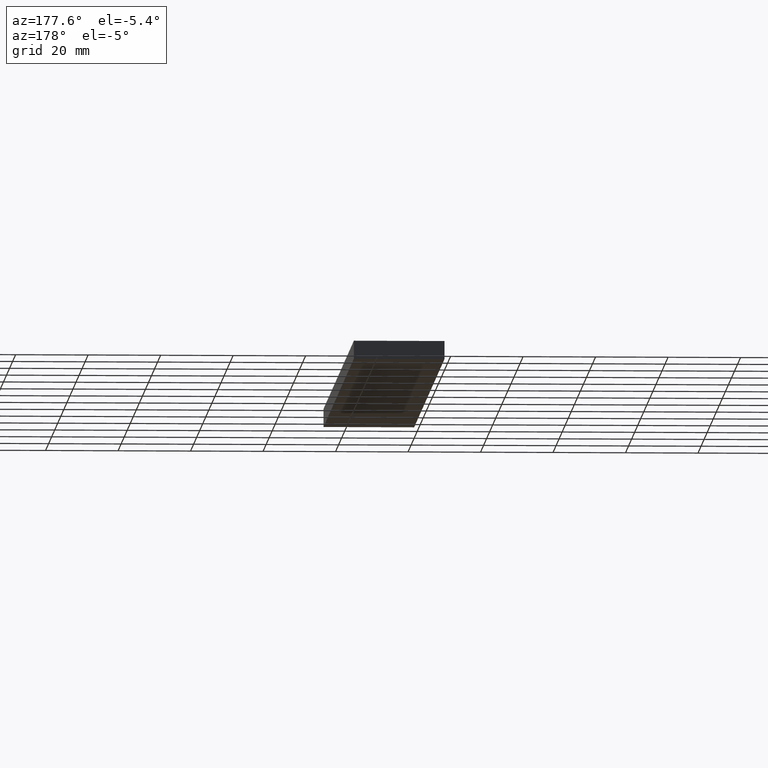
[diagram: clean part render]
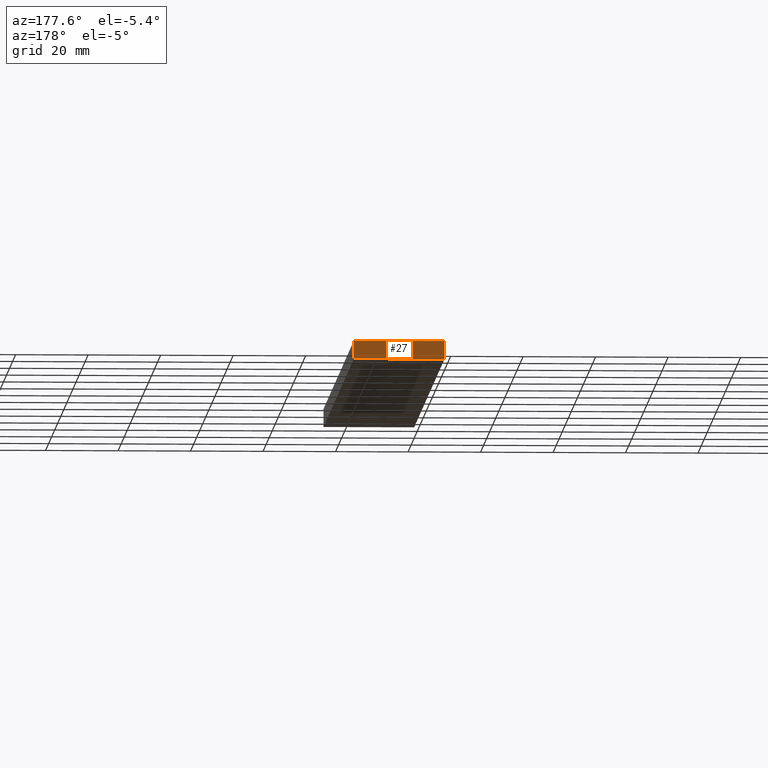
[diagram: same view with one face highlighted and labeled with its STEP entity id]
A machine part, auxiliary view. The second image highlights one B-rep face of the part: STEP entity #27.
In plain terms, the highlighted planar face has unit normal (0, 1, 0).
Its self-contained STEP definition (entity closure, byte-faithful):
#2 = CARTESIAN_POINT ( 'NONE',  ( 25.00000000000000000, 200.0000000000000000, 0.0000000000000000000 ) ) ;
#6 = PLANE ( 'NONE',  #61 ) ;
#11 = DIRECTION ( 'NONE',  ( -0.0000000000000000000, -0.0000000000000000000, 1.000000000000000000 ) ) ;
#16 = EDGE_LOOP ( 'NONE', ( #57, #162, #205, #134 ) ) ;
#27 = ADVANCED_FACE ( 'NONE', ( #96 ), #6, .T. ) ;
#30 = CARTESIAN_POINT ( 'NONE',  ( 0.0000000000000000000, 200.0000000000000000, 0.0000000000000000000 ) ) ;
#34 = CARTESIAN_POINT ( 'NONE',  ( 0.0000000000000000000, 200.0000000000000000, 5.000000000000000000 ) ) ;
#35 = VECTOR ( 'NONE', #11, 1000.000000000000000 ) ;
#45 = CARTESIAN_POINT ( 'NONE',  ( 0.0000000000000000000, 200.0000000000000000, 0.0000000000000000000 ) ) ;
#54 = LINE ( 'NONE', #209, #35 ) ;
#55 = DIRECTION ( 'NONE',  ( 1.000000000000000000, -0.0000000000000000000, -0.0000000000000000000 ) ) ;
#57 = ORIENTED_EDGE ( 'NONE', *, *, #59, .F. ) ;
#59 = EDGE_CURVE ( 'NONE', #202, #218, #92, .T. ) ;
#61 = AXIS2_PLACEMENT_3D ( 'NONE', #45, #206, #114 ) ;
#63 = CARTESIAN_POINT ( 'NONE',  ( 0.0000000000000000000, 200.0000000000000000, 0.0000000000000000000 ) ) ;
#65 = EDGE_CURVE ( 'NONE', #218, #142, #54, .T. ) ;
#92 = LINE ( 'NONE', #63, #180 ) ;
#96 = FACE_OUTER_BOUND ( 'NONE', #16, .T. ) ;
#103 = CARTESIAN_POINT ( 'NONE',  ( 25.00000000000000000, 200.0000000000000000, 5.000000000000000000 ) ) ;
#114 = DIRECTION ( 'NONE',  ( 1.000000000000000000, 0.0000000000000000000, 0.0000000000000000000 ) ) ;
#115 = CARTESIAN_POINT ( 'NONE',  ( 0.0000000000000000000, 200.0000000000000000, 5.000000000000000000 ) ) ;
#120 = EDGE_CURVE ( 'NONE', #142, #213, #139, .T. ) ;
#129 = VECTOR ( 'NONE', #170, 1000.000000000000000 ) ;
#134 = ORIENTED_EDGE ( 'NONE', *, *, #65, .F. ) ;
#139 = LINE ( 'NONE', #115, #129 ) ;
#142 = VERTEX_POINT ( 'NONE', #103 ) ;
#162 = ORIENTED_EDGE ( 'NONE', *, *, #214, .F. ) ;
#170 = DIRECTION ( 'NONE',  ( -1.000000000000000000, -0.0000000000000000000, -0.0000000000000000000 ) ) ;
#180 = VECTOR ( 'NONE', #55, 1000.000000000000000 ) ;
#191 = CARTESIAN_POINT ( 'NONE',  ( 0.0000000000000000000, 200.0000000000000000, 0.0000000000000000000 ) ) ;
#202 = VERTEX_POINT ( 'NONE', #191 ) ;
#205 = ORIENTED_EDGE ( 'NONE', *, *, #120, .F. ) ;
#206 = DIRECTION ( 'NONE',  ( -0.0000000000000000000, 1.000000000000000000, 0.0000000000000000000 ) ) ;
#209 = CARTESIAN_POINT ( 'NONE',  ( 25.00000000000000000, 200.0000000000000000, 0.0000000000000000000 ) ) ;
#213 = VERTEX_POINT ( 'NONE', #34 ) ;
#214 = EDGE_CURVE ( 'NONE', #213, #202, #233, .T. ) ;
#218 = VERTEX_POINT ( 'NONE', #2 ) ;
#219 = VECTOR ( 'NONE', #232, 1000.000000000000000 ) ;
#232 = DIRECTION ( 'NONE',  ( -0.0000000000000000000, -0.0000000000000000000, -1.000000000000000000 ) ) ;
#233 = LINE ( 'NONE', #30, #219 ) ;